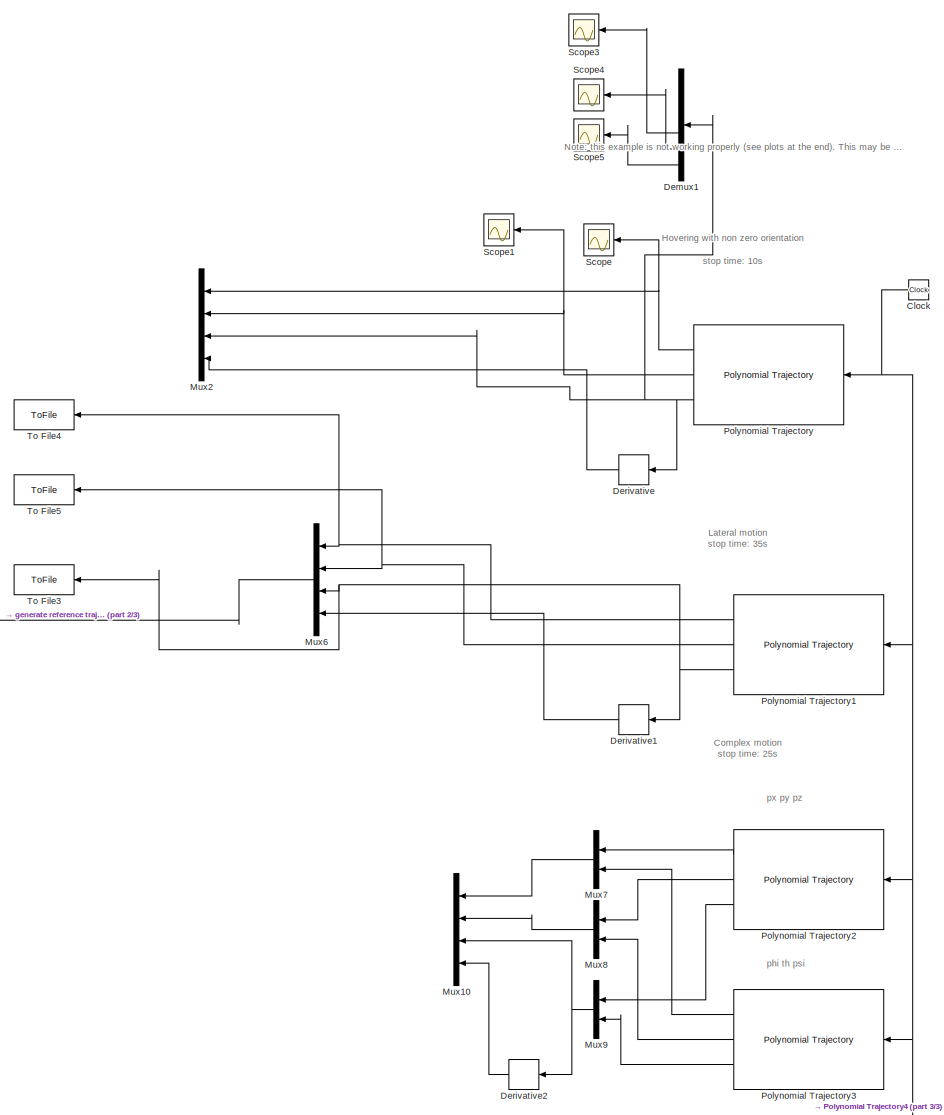
[diagram: root canvas - part 1/3, middle right region]
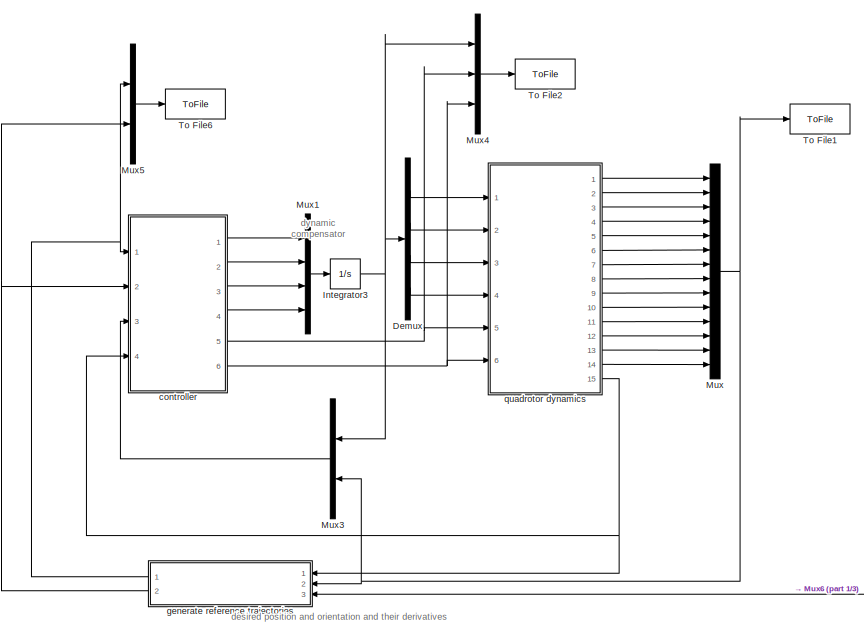
[diagram: root canvas - part 2/3, top left region]
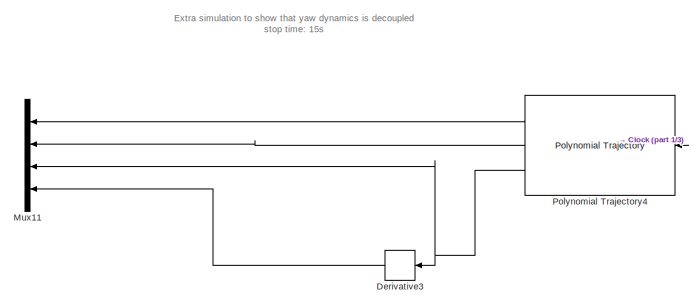
[diagram: root canvas - part 3/3, bottom right region]
MODEL slx_5abe82994318
KIND model
CONFIG AbsTol = auto
CONFIG EnableMultiTasking = off
CONFIG FixedStep = auto
CONFIG InitFcn = Kp1=30*eye(3); Kw1=Kp1;\nKp2=600*eye(3); Kw2=Kp2;\nKp3=900*eye(3); Kw3=Kp3;
CONFIG MaxStep = auto
CONFIG MinStep = auto
CONFIG RelTol = 1e-3
CONFIG SampleTimeConstraint = Unconstrained
CONFIG SolverName = VariableStepAuto
CONFIG StartTime = 0.0
CONFIG StopTime = 35
BLOCK [Clock] Clock
BLOCK [Demux] Demux
  Ports = [1, 4]
BLOCK [Demux] Demux1
  Outputs = 6
  Ports = [1, 6]
BLOCK [Derivative] Derivative
BLOCK [Derivative] Derivative1
BLOCK [Derivative] Derivative2
BLOCK [Derivative] Derivative3
BLOCK [Integrator] Integrator3
  InitialCondition = ones(4,1)*613125/4
  Ports = [1, 1]
BLOCK [Mux] Mux
  DisplayOption = bar
  Inputs = 14
  Ports = [14, 1]
BLOCK [Mux] Mux1
  DisplayOption = bar
  Ports = [4, 1]
BLOCK [Mux] Mux10
  DisplayOption = bar
  Ports = [4, 1]
BLOCK [Mux] Mux11
  DisplayOption = bar
  Ports = [4, 1]
BLOCK [Mux] Mux2
  DisplayOption = bar
  Ports = [4, 1]
BLOCK [Mux] Mux3
  DisplayOption = bar
  Inputs = 2
  Ports = [2, 1]
BLOCK [Mux] Mux4
  DisplayOption = bar
  Inputs = 3
  Ports = [3, 1]
BLOCK [Mux] Mux5
  DisplayOption = bar
  Inputs = 2
  Ports = [2, 1]
BLOCK [Mux] Mux6
  DisplayOption = bar
  Ports = [4, 1]
BLOCK [Mux] Mux7
  DisplayOption = bar
  Inputs = 2
  Ports = [2, 1]
BLOCK [Mux] Mux8
  DisplayOption = bar
  Inputs = 2
  Ports = [2, 1]
BLOCK [Mux] Mux9
  DisplayOption = bar
  Inputs = 2
  Ports = [2, 1]
BLOCK [Reference] Polynomial Trajectory  REF=robotcorelib/Polynomial Trajectory
  Ports = [1, 3]
  SourceBlock = robotcorelib/Polynomial Trajectory
  SourceProductBaseCode = NV,RO,RR,UV
  SourceType = robotics.slcore.internal.block.PolyTrajSys
BLOCK [Reference] Polynomial Trajectory1  REF=robotcorelib/Polynomial Trajectory
  Ports = [1, 3]
  SourceBlock = robotcorelib/Polynomial Trajectory
  SourceProductBaseCode = NV,RO,RR,UV
  SourceType = robotics.slcore.internal.block.PolyTrajSys
BLOCK [Reference] Polynomial Trajectory2  REF=robotcorelib/Polynomial Trajectory
  Ports = [1, 3]
  SourceBlock = robotcorelib/Polynomial Trajectory
  SourceProductBaseCode = NV,RO,RR,UV
  SourceType = robotics.slcore.internal.block.PolyTrajSys
BLOCK [Reference] Polynomial Trajectory3  REF=robotcorelib/Polynomial Trajectory
  Ports = [1, 3]
  SourceBlock = robotcorelib/Polynomial Trajectory
  SourceProductBaseCode = NV,RO,RR,UV
  SourceType = robotics.slcore.internal.block.PolyTrajSys
BLOCK [Reference] Polynomial Trajectory4  REF=robotcorelib/Polynomial Trajectory
  Ports = [1, 3]
  SourceBlock = robotcorelib/Polynomial Trajectory
  SourceProductBaseCode = NV,RO,RR,UV
  SourceType = robotics.slcore.internal.block.PolyTrajSys
BLOCK [Scope] Scope
  Floating = off
  NumInputPorts = 1
  Ports = [1]
  ScopeSpecificationString = Simulink.scopes.TimeScopeBlockCfg('CurrentConfiguration', extmgr.ConfigurationSet(extmgr.Configuration('Core','General UI',true),extmgr.Configuration('Core','Source UI',true),extmgr.Configuration('Sources','WiredSimulink',true,'DataLoggingVariableName','ScopeData1'),extmgr.Configuration('Visuals','Time Domain',true,'SerializedDisplays',{struct('MinYLimReal','-0.21812','MaxYLimReal','0.21812','YLab...<+1556ch>
BLOCK [Scope] Scope1
  Floating = off
  NumInputPorts = 1
  Ports = [1]
  ScopeSpecificationString = Simulink.scopes.TimeScopeBlockCfg('CurrentConfiguration', extmgr.ConfigurationSet(extmgr.Configuration('Core','General UI',true),extmgr.Configuration('Core','Source UI',true),extmgr.Configuration('Sources','WiredSimulink',true,'DataLoggingVariableName','ScopeData1'),extmgr.Configuration('Visuals','Time Domain',true,'SerializedDisplays',{struct('MinYLimReal','-0.81482','MaxYLimReal','0.81709','YLab...<+1558ch>
BLOCK [Scope] Scope3
  Floating = off
  NumInputPorts = 1
  Ports = [1]
  ScopeSpecificationString = Simulink.scopes.TimeScopeBlockCfg('CurrentConfiguration', extmgr.ConfigurationSet(extmgr.Configuration('Core','General UI',true),extmgr.Configuration('Core','Source UI',true),extmgr.Configuration('Sources','WiredSimulink',true,'DataLoggingVariableName','ScopeData2'),extmgr.Configuration('Visuals','Time Domain',true,'SerializedDisplays',{struct('MinYLimReal','-5.02362','MaxYLimReal','5.03225','YLab...<+1401ch>
BLOCK [Scope] Scope4
  Floating = off
  NumInputPorts = 1
  Ports = [1]
  ScopeSpecificationString = Simulink.scopes.TimeScopeBlockCfg('CurrentConfiguration', extmgr.ConfigurationSet(extmgr.Configuration('Core','General UI',true),extmgr.Configuration('Core','Source UI',true),extmgr.Configuration('Sources','WiredSimulink',true,'DataLoggingVariableName','ScopeData3'),extmgr.Configuration('Visuals','Time Domain',true,'SerializedDisplays',{struct('MinYLimReal','-5.03416','MaxYLimReal','5.01674','YLab...<+1399ch>
BLOCK [Scope] Scope5
  Floating = off
  NumInputPorts = 1
  Ports = [1]
  ScopeSpecificationString = Simulink.scopes.TimeScopeBlockCfg('CurrentConfiguration', extmgr.ConfigurationSet(extmgr.Configuration('Core','General UI',true),extmgr.Configuration('Core','Source UI',true),extmgr.Configuration('Sources','WiredSimulink',true,'DataLoggingVariableName','ScopeData4'),extmgr.Configuration('Visuals','Time Domain',true,'SerializedDisplays',{struct('MinYLimReal','-2.45852','MaxYLimReal','2.55192','YLab...<+1399ch>
BLOCK [ToFile] To File1
  Filename = state.mat
  MatrixName = state
  Ports = [1]
BLOCK [ToFile] To File2
  Filename = inputs.mat
  MatrixName = inputs
  Ports = [1]
BLOCK [ToFile] To File3
  Filename = ddq.mat
  MatrixName = ddq
  Ports = [1]
BLOCK [ToFile] To File4
  Filename = q.mat
  MatrixName = q
  Ports = [1]
BLOCK [ToFile] To File5
  Filename = dq.mat
  MatrixName = dq
  Ports = [1]
BLOCK [ToFile] To File6
  Filename = references.mat
  MatrixName = refs
  Ports = [1]
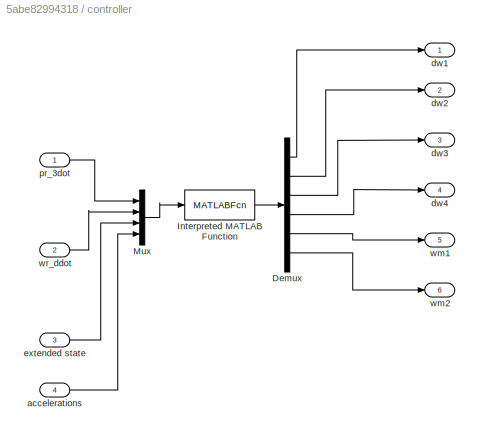
BLOCK [SubSystem] controller
  Ports = [4, 6]
  RequestExecContextInheritance = off
BLOCK [Demux] controller/Demux
  Outputs = 6
  Ports = [1, 6]
BLOCK [MATLABFcn] controller/Interpreted MATLAB Function
  MATLABFcn = quadrotor_controller(u(1:6),u(7:30))
  Output1D = off
  OutputDimensions = [6,1]
  OutputSignalType = real
  Ports = [1, 1]
BLOCK [Mux] controller/Mux
  DisplayOption = bar
  Ports = [4, 1]
BLOCK [Inport] controller/accelerations
  Port = 4
BLOCK [Outport] controller/dw1
BLOCK [Outport] controller/dw2
  Port = 2
BLOCK [Outport] controller/dw3
  Port = 3
BLOCK [Outport] controller/dw4
  Port = 4
BLOCK [Inport] controller/extended state
  Port = 3
BLOCK [Inport] controller/pr_3dot
BLOCK [Outport] controller/wm1
  Port = 5
BLOCK [Outport] controller/wm2
  Port = 6
BLOCK [Inport] controller/wr_ddot
  Port = 2
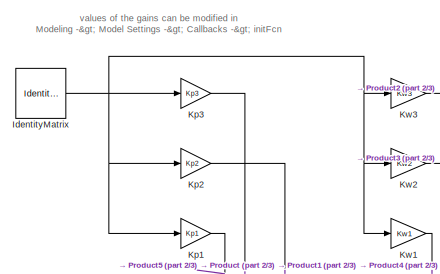
[diagram: generate reference trajectories - part 1/3, top left region]
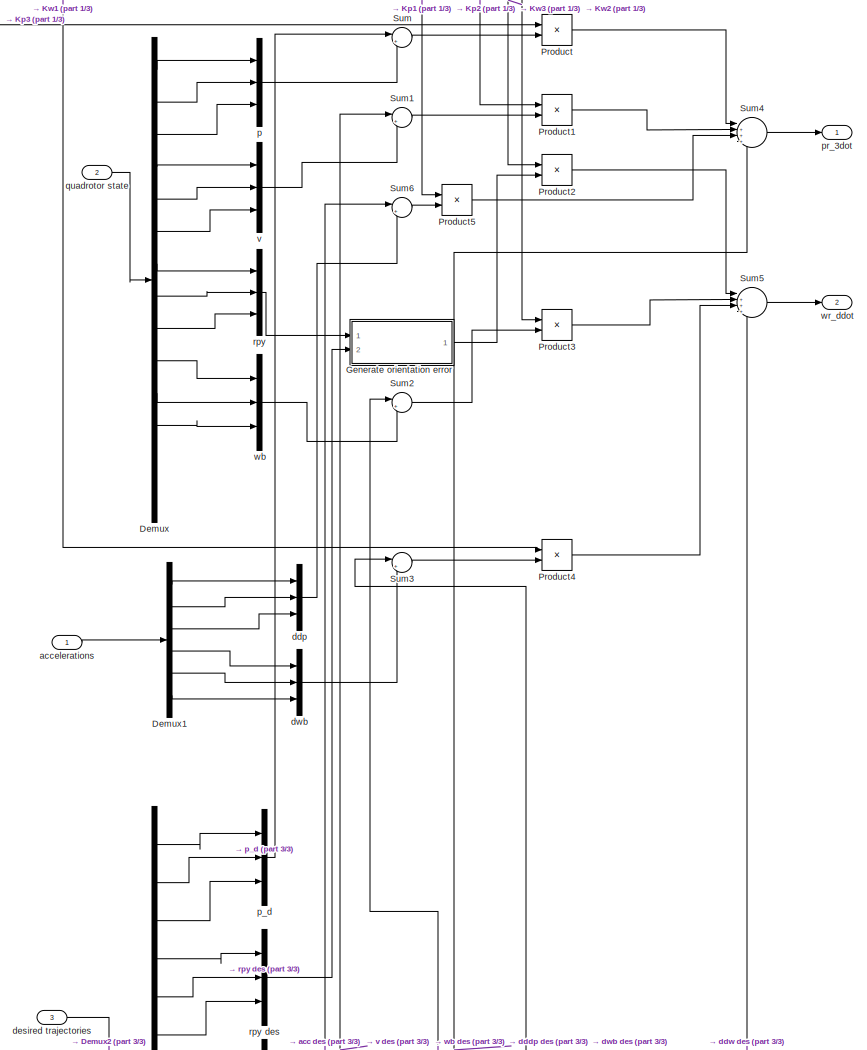
[diagram: generate reference trajectories - part 2/3, central region]
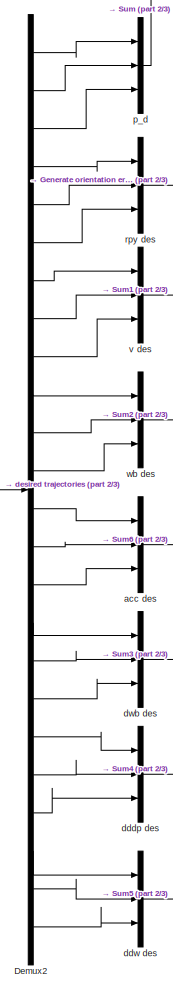
[diagram: generate reference trajectories - part 3/3, bottom center region]
BLOCK [SubSystem] generate reference trajectories
  Ports = [3, 2]
  RequestExecContextInheritance = off
BLOCK [Demux] generate reference trajectories/Demux
  Outputs = 14
  Ports = [1, 14]
BLOCK [Demux] generate reference trajectories/Demux1
  Outputs = 6
  Ports = [1, 6]
BLOCK [Demux] generate reference trajectories/Demux2
  Outputs = 24
  Ports = [1, 24]
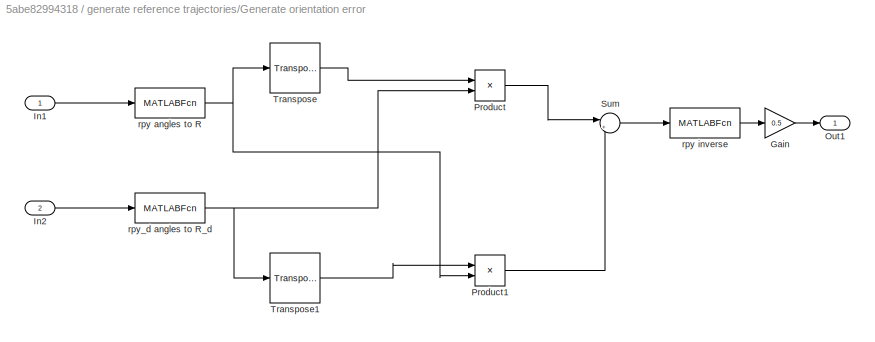
BLOCK [SubSystem] generate reference trajectories/Generate orientation error
  Ports = [2, 1]
  RequestExecContextInheritance = off
BLOCK [Gain] generate reference trajectories/Generate orientation error/Gain
  Gain = 0.5
BLOCK [Inport] generate reference trajectories/Generate orientation error/In1
BLOCK [Inport] generate reference trajectories/Generate orientation error/In2
  Port = 2
BLOCK [Outport] generate reference trajectories/Generate orientation error/Out1
BLOCK [Product] generate reference trajectories/Generate orientation error/Product
  Multiplication = Matrix(*)
  Ports = [2, 1]
BLOCK [Product] generate reference trajectories/Generate orientation error/Product1
  Multiplication = Matrix(*)
  Ports = [2, 1]
BLOCK [Sum] generate reference trajectories/Generate orientation error/Sum
  Inputs = |+-
  Ports = [2, 1]
BLOCK [Reference] generate reference trajectories/Generate orientation error/Transpose  REF=matrix_library/Transpose
  Ports = [1, 1]
  SourceBlock = matrix_library/Transpose
  SourceProductBaseCode = SL
  SourceType = Transpose
BLOCK [Reference] generate reference trajectories/Generate orientation error/Transpose1  REF=matrix_library/Transpose
  Ports = [1, 1]
  SourceBlock = matrix_library/Transpose
  SourceProductBaseCode = SL
  SourceType = Transpose
BLOCK [MATLABFcn] generate reference trajectories/Generate orientation error/rpy angles to R
  MATLABFcn = rpy_rotation('xyz',u)
  Output1D = off
  OutputDimensions = [3,3]
  Ports = [1, 1]
BLOCK [MATLABFcn] generate reference trajectories/Generate orientation error/rpy inverse
  MATLABFcn = iskew(u)
  Output1D = off
  OutputDimensions = [3,1]
  Ports = [1, 1]
BLOCK [MATLABFcn] generate reference trajectories/Generate orientation error/rpy_d angles to R_d
  MATLABFcn = rpy_rotation('xyz',u)
  Output1D = off
  OutputDimensions = [3,3]
  Ports = [1, 1]
BLOCK [IdentityMatrix] generate reference trajectories/IdentityMatrix
  OutputDimensions = 3
  Ports = [0, 1]
BLOCK [Gain] generate reference trajectories/Kp1
  Gain = Kp1
BLOCK [Gain] generate reference trajectories/Kp2
  Gain = Kp2
BLOCK [Gain] generate reference trajectories/Kp3
  Gain = Kp3
BLOCK [Gain] generate reference trajectories/Kw1
  Gain = Kw1
BLOCK [Gain] generate reference trajectories/Kw2
  Gain = Kw2
BLOCK [Gain] generate reference trajectories/Kw3
  Gain = Kw3
BLOCK [Product] generate reference trajectories/Product
  Multiplication = Matrix(*)
  Ports = [2, 1]
BLOCK [Product] generate reference trajectories/Product1
  Multiplication = Matrix(*)
  Ports = [2, 1]
BLOCK [Product] generate reference trajectories/Product2
  Multiplication = Matrix(*)
  Ports = [2, 1]
BLOCK [Product] generate reference trajectories/Product3
  Multiplication = Matrix(*)
  Ports = [2, 1]
BLOCK [Product] generate reference trajectories/Product4
  Multiplication = Matrix(*)
  Ports = [2, 1]
BLOCK [Product] generate reference trajectories/Product5
  Multiplication = Matrix(*)
  Ports = [2, 1]
BLOCK [Sum] generate reference trajectories/Sum
  Inputs = |+-
  Ports = [2, 1]
BLOCK [Sum] generate reference trajectories/Sum1
  Inputs = |+-
  Ports = [2, 1]
BLOCK [Sum] generate reference trajectories/Sum2
  Inputs = |+-
  Ports = [2, 1]
BLOCK [Sum] generate reference trajectories/Sum3
  Inputs = |+-
  Ports = [2, 1]
BLOCK [Sum] generate reference trajectories/Sum4
  Inputs = |++++
  Ports = [4, 1]
BLOCK [Sum] generate reference trajectories/Sum5
  Inputs = |++++
  Ports = [4, 1]
BLOCK [Sum] generate reference trajectories/Sum6
  Inputs = |+-
  Ports = [2, 1]
BLOCK [Mux] generate reference trajectories/acc des
  DisplayOption = bar
  Inputs = 3
  Ports = [3, 1]
BLOCK [Inport] generate reference trajectories/accelerations
BLOCK [Mux] generate reference trajectories/dddp des
  DisplayOption = bar
  Inputs = 3
  Ports = [3, 1]
BLOCK [Mux] generate reference trajectories/ddp
  DisplayOption = bar
  Inputs = 3
  Ports = [3, 1]
BLOCK [Mux] generate reference trajectories/ddw des
  DisplayOption = bar
  Inputs = 3
  Ports = [3, 1]
BLOCK [Inport] generate reference trajectories/desired trajectories
  Port = 3
BLOCK [Mux] generate reference trajectories/dwb
  DisplayOption = bar
  Inputs = 3
  Ports = [3, 1]
BLOCK [Mux] generate reference trajectories/dwb des
  DisplayOption = bar
  Inputs = 3
  Ports = [3, 1]
BLOCK [Mux] generate reference trajectories/p
  DisplayOption = bar
  Inputs = 3
  Ports = [3, 1]
BLOCK [Mux] generate reference trajectories/p_d
  DisplayOption = bar
  Inputs = 3
  Ports = [3, 1]
BLOCK [Outport] generate reference trajectories/pr_3dot
BLOCK [Inport] generate reference trajectories/quadrotor state
  Port = 2
BLOCK [Mux] generate reference trajectories/rpy
  DisplayOption = bar
  Inputs = 3
  Ports = [3, 1]
BLOCK [Mux] generate reference trajectories/rpy des
  DisplayOption = bar
  Inputs = 3
  Ports = [3, 1]
BLOCK [Mux] generate reference trajectories/v
  DisplayOption = bar
  Inputs = 3
  Ports = [3, 1]
BLOCK [Mux] generate reference trajectories/v des
  DisplayOption = bar
  Inputs = 3
  Ports = [3, 1]
BLOCK [Mux] generate reference trajectories/wb
  DisplayOption = bar
  Inputs = 3
  Ports = [3, 1]
BLOCK [Mux] generate reference trajectories/wb des
  DisplayOption = bar
  Inputs = 3
  Ports = [3, 1]
BLOCK [Outport] generate reference trajectories/wr_ddot
  Port = 2
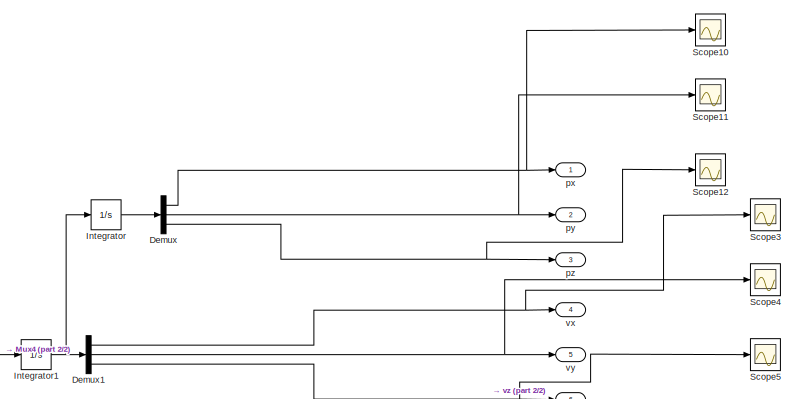
[diagram: quadrotor dynamics - part 1/2, top right region]
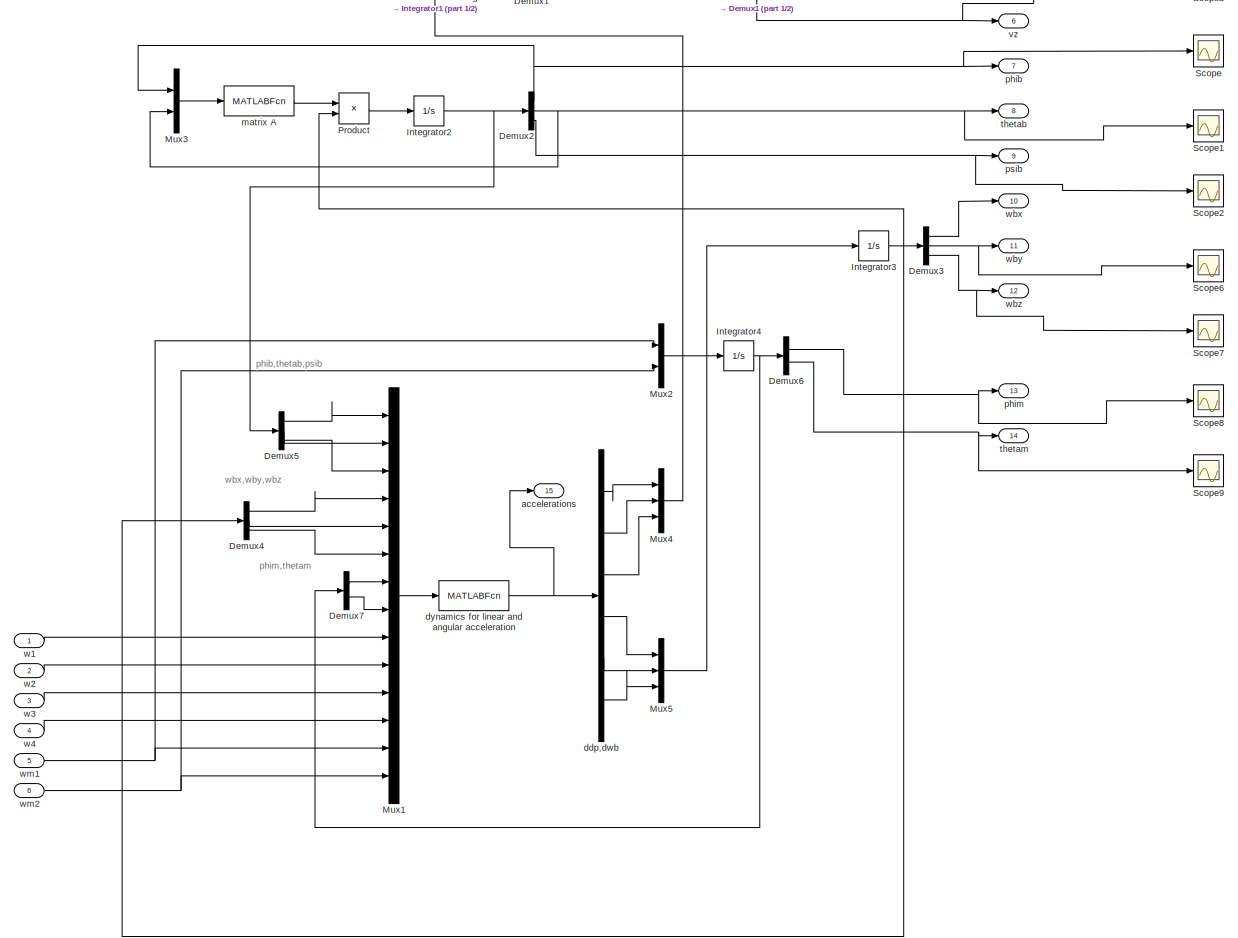
[diagram: quadrotor dynamics - part 2/2, full width, middle band]
BLOCK [SubSystem] quadrotor dynamics
  Ports = [6, 15]
  RequestExecContextInheritance = off
BLOCK [Demux] quadrotor dynamics/Demux
  Outputs = 3
  Ports = [1, 3]
BLOCK [Demux] quadrotor dynamics/Demux1
  Outputs = 3
  Ports = [1, 3]
BLOCK [Demux] quadrotor dynamics/Demux2
  Outputs = 3
  Ports = [1, 3]
BLOCK [Demux] quadrotor dynamics/Demux3
  Outputs = 3
  Ports = [1, 3]
BLOCK [Demux] quadrotor dynamics/Demux4
  Outputs = 3
  Ports = [1, 3]
BLOCK [Demux] quadrotor dynamics/Demux5
  Outputs = 3
  Ports = [1, 3]
BLOCK [Demux] quadrotor dynamics/Demux6
  Outputs = 2
  Ports = [1, 2]
BLOCK [Demux] quadrotor dynamics/Demux7
  Outputs = 2
  Ports = [1, 2]
BLOCK [Integrator] quadrotor dynamics/Integrator
  InitialCondition = [0 0 0]'
  Ports = [1, 1]
BLOCK [Integrator] quadrotor dynamics/Integrator1
  InitialCondition = [0 0 0]'
  Ports = [1, 1]
BLOCK [Integrator] quadrotor dynamics/Integrator2
  InitialCondition = [0 0 0]'
  Ports = [1, 1]
BLOCK [Integrator] quadrotor dynamics/Integrator3
  InitialCondition = [0 0 0]'
  Ports = [1, 1]
BLOCK [Integrator] quadrotor dynamics/Integrator4
  InitialCondition = [0 0]'
  Ports = [1, 1]
BLOCK [Mux] quadrotor dynamics/Mux1
  DisplayOption = bar
  Inputs = 14
  Ports = [14, 1]
BLOCK [Mux] quadrotor dynamics/Mux2
  DisplayOption = bar
  Inputs = 2
  Ports = [2, 1]
BLOCK [Mux] quadrotor dynamics/Mux3
  DisplayOption = bar
  Inputs = 2
  Ports = [2, 1]
BLOCK [Mux] quadrotor dynamics/Mux4
  DisplayOption = bar
  Inputs = 3
  Ports = [3, 1]
BLOCK [Mux] quadrotor dynamics/Mux5
  DisplayOption = bar
  Inputs = 3
  Ports = [3, 1]
BLOCK [Product] quadrotor dynamics/Product
  Multiplication = Matrix(*)
  Ports = [2, 1]
BLOCK [Scope] quadrotor dynamics/Scope
  Floating = off
  NumInputPorts = 1
  Ports = [1]
  ScopeSpecificationString = Simulink.scopes.TimeScopeBlockCfg('CurrentConfiguration', extmgr.ConfigurationSet(extmgr.Configuration('Core','General UI',true),extmgr.Configuration('Core','Source UI',true),extmgr.Configuration('Sources','WiredSimulink',true,'DataLoggingVariableName','ScopeData4'),extmgr.Configuration('Visuals','Time Domain',true,'SerializedDisplays',{struct('MinYLimReal','-0.05103','MaxYLimReal','0.20195','YLab...<+1403ch>
BLOCK [Scope] quadrotor dynamics/Scope1
  Floating = off
  NumInputPorts = 1
  Ports = [1]
  ScopeSpecificationString = Simulink.scopes.TimeScopeBlockCfg('CurrentConfiguration', extmgr.ConfigurationSet(extmgr.Configuration('Core','General UI',true),extmgr.Configuration('Core','Source UI',true),extmgr.Configuration('Sources','WiredSimulink',true,'DataLoggingVariableName','ScopeData5'),extmgr.Configuration('Visuals','Time Domain',true,'SerializedDisplays',{struct('MinYLimReal','-0.000000000000008','MaxYLimReal','0.00...<+1481ch>
BLOCK [Scope] quadrotor dynamics/Scope10
  Floating = off
  NumInputPorts = 1
  Ports = [1]
  ScopeSpecificationString = Simulink.scopes.TimeScopeBlockCfg('CurrentConfiguration', extmgr.ConfigurationSet(extmgr.Configuration('Core','General UI',true),extmgr.Configuration('Core','Source UI',true),extmgr.Configuration('Sources','WiredSimulink',true,'DataLoggingVariableName','ScopeData1'),extmgr.Configuration('Visuals','Time Domain',true,'SerializedDisplays',{struct('MinYLimReal','-0.000016','MaxYLimReal','0.000029','YL...<+1374ch>
BLOCK [Scope] quadrotor dynamics/Scope11
  Floating = off
  NumInputPorts = 1
  Ports = [1]
  ScopeSpecificationString = Simulink.scopes.TimeScopeBlockCfg('CurrentConfiguration', extmgr.ConfigurationSet(extmgr.Configuration('Core','General UI',true),extmgr.Configuration('Core','Source UI',true),extmgr.Configuration('Sources','WiredSimulink',true,'DataLoggingVariableName','ScopeData2'),extmgr.Configuration('Visuals','Time Domain',true,'SerializedDisplays',{struct('MinYLimReal','-0.00006','MaxYLimReal','0.00054','YLab...<+1366ch>
BLOCK [Scope] quadrotor dynamics/Scope12
  Floating = off
  NumInputPorts = 1
  Ports = [1]
  ScopeSpecificationString = Simulink.scopes.TimeScopeBlockCfg('CurrentConfiguration', extmgr.ConfigurationSet(extmgr.Configuration('Core','General UI',true),extmgr.Configuration('Core','Source UI',true),extmgr.Configuration('Sources','WiredSimulink',true,'DataLoggingVariableName','ScopeData3'),extmgr.Configuration('Visuals','Time Domain',true,'SerializedDisplays',{struct('MinYLimReal','-0.0000001','MaxYLimReal','0.00000004',...<+1386ch>
BLOCK [Scope] quadrotor dynamics/Scope2
  Floating = off
  NumInputPorts = 1
  Ports = [1]
  ScopeSpecificationString = Simulink.scopes.TimeScopeBlockCfg('CurrentConfiguration', extmgr.ConfigurationSet(extmgr.Configuration('Core','General UI',true),extmgr.Configuration('Core','Source UI',true),extmgr.Configuration('Sources','WiredSimulink',true,'DataLoggingVariableName','ScopeData6'),extmgr.Configuration('Visuals','Time Domain',true,'SerializedDisplays',{struct('MinYLimReal','-0.04934','MaxYLimReal','0.20053','YLab...<+1403ch>
BLOCK [Scope] quadrotor dynamics/Scope3
  Floating = off
  NumInputPorts = 1
  Ports = [1]
  ScopeSpecificationString = Simulink.scopes.TimeScopeBlockCfg('CurrentConfiguration', extmgr.ConfigurationSet(extmgr.Configuration('Core','General UI',true),extmgr.Configuration('Core','Source UI',true),extmgr.Configuration('Sources','WiredSimulink',true,'DataLoggingVariableName','ScopeData7'),extmgr.Configuration('Visuals','Time Domain',true,'SerializedDisplays',{struct('MinYLimReal','-1.00000','MaxYLimReal','1.00000','YLab...<+1367ch>
BLOCK [Scope] quadrotor dynamics/Scope4
  Floating = off
  NumInputPorts = 1
  Ports = [1]
  ScopeSpecificationString = Simulink.scopes.TimeScopeBlockCfg('CurrentConfiguration', extmgr.ConfigurationSet(extmgr.Configuration('Core','General UI',true),extmgr.Configuration('Core','Source UI',true),extmgr.Configuration('Sources','WiredSimulink',true,'DataLoggingVariableName','ScopeData8'),extmgr.Configuration('Visuals','Time Domain',true,'SerializedDisplays',{struct('MinYLimReal','-1.00000','MaxYLimReal','1.00000','YLab...<+1367ch>
BLOCK [Scope] quadrotor dynamics/Scope5
  Floating = off
  NumInputPorts = 1
  Ports = [1]
  ScopeSpecificationString = Simulink.scopes.TimeScopeBlockCfg('CurrentConfiguration', extmgr.ConfigurationSet(extmgr.Configuration('Core','General UI',true),extmgr.Configuration('Core','Source UI',true),extmgr.Configuration('Sources','WiredSimulink',true,'DataLoggingVariableName','ScopeData9'),extmgr.Configuration('Visuals','Time Domain',true,'SerializedDisplays',{struct('MinYLimReal','-0.00000000000002','MaxYLimReal','0.000...<+1443ch>
BLOCK [Scope] quadrotor dynamics/Scope6
  Floating = off
  NumInputPorts = 1
  Ports = [1]
  ScopeSpecificationString = Simulink.scopes.TimeScopeBlockCfg('CurrentConfiguration', extmgr.ConfigurationSet(extmgr.Configuration('Core','General UI',true),extmgr.Configuration('Core','Source UI',true),extmgr.Configuration('Sources','WiredSimulink',true,'DataLoggingVariableName','ScopeData10'),extmgr.Configuration('Visuals','Time Domain',true,'SerializedDisplays',{struct('MinYLimReal','-0.7956','MaxYLimReal','0.60685','YLab...<+1364ch>
BLOCK [Scope] quadrotor dynamics/Scope7
  Floating = off
  NumInputPorts = 1
  Ports = [1]
  ScopeSpecificationString = Simulink.scopes.TimeScopeBlockCfg('CurrentConfiguration', extmgr.ConfigurationSet(extmgr.Configuration('Core','General UI',true),extmgr.Configuration('Core','Source UI',true),extmgr.Configuration('Sources','WiredSimulink',true,'DataLoggingVariableName','ScopeData11'),extmgr.Configuration('Visuals','Time Domain',true,'SerializedDisplays',{struct('MinYLimReal','-0.57633','MaxYLimReal','0.51815','YLa...<+1368ch>
BLOCK [Scope] quadrotor dynamics/Scope8
  Floating = off
  NumInputPorts = 1
  Ports = [1]
  ScopeSpecificationString = Simulink.scopes.TimeScopeBlockCfg('CurrentConfiguration', extmgr.ConfigurationSet(extmgr.Configuration('Core','General UI',true),extmgr.Configuration('Core','Source UI',true),extmgr.Configuration('Sources','WiredSimulink',true,'DataLoggingVariableName','ScopeData1'),extmgr.Configuration('Visuals','Time Domain',true,'SerializedDisplays',{struct('MinYLimReal','-1.00000','MaxYLimReal','1.00000','YLab...<+1367ch>
BLOCK [Scope] quadrotor dynamics/Scope9
  Floating = off
  NumInputPorts = 1
  Ports = [1]
  ScopeSpecificationString = Simulink.scopes.TimeScopeBlockCfg('CurrentConfiguration', extmgr.ConfigurationSet(extmgr.Configuration('Core','General UI',true),extmgr.Configuration('Core','Source UI',true),extmgr.Configuration('Sources','WiredSimulink',true,'DataLoggingVariableName','ScopeData2'),extmgr.Configuration('Visuals','Time Domain',true,'SerializedDisplays',{struct('MinYLimReal','-1.00000','MaxYLimReal','1.00000','YLab...<+1367ch>
BLOCK [Outport] quadrotor dynamics/accelerations
  Port = 15
BLOCK [Demux] quadrotor dynamics/ddp,dwb
  Outputs = 6
  Ports = [1, 6]
BLOCK [MATLABFcn] quadrotor dynamics/dynamics for linear and angular acceleration
  MATLABFcn = quadrotor_dynamics(u(1),u(2),u(3),u(4),u(5),u(6),u(7),u(8),u(9),u(10),u(11),u(12),u(13),u(14))
  Output1D = off
  OutputDimensions = [6,1]
  Ports = [1, 1]
BLOCK [MATLABFcn] quadrotor dynamics/matrix A
  MATLABFcn = matrix_A(u)
  Output1D = off
  OutputDimensions = [3,3]
  Ports = [1, 1]
BLOCK [Outport] quadrotor dynamics/phib
  Port = 7
BLOCK [Outport] quadrotor dynamics/phim
  Port = 13
BLOCK [Outport] quadrotor dynamics/psib
  Port = 9
BLOCK [Outport] quadrotor dynamics/px
  IconDisplay = Signal name
BLOCK [Outport] quadrotor dynamics/py
  Port = 2
BLOCK [Outport] quadrotor dynamics/pz
  IconDisplay = Signal name
  Port = 3
BLOCK [Outport] quadrotor dynamics/thetab
  Port = 8
BLOCK [Outport] quadrotor dynamics/thetam
  Port = 14
BLOCK [Outport] quadrotor dynamics/vx
  Port = 4
BLOCK [Outport] quadrotor dynamics/vy
  Port = 5
BLOCK [Outport] quadrotor dynamics/vz
  Port = 6
BLOCK [Inport] quadrotor dynamics/w1
BLOCK [Inport] quadrotor dynamics/w2
  Port = 2
BLOCK [Inport] quadrotor dynamics/w3
  Port = 3
BLOCK [Inport] quadrotor dynamics/w4
  Port = 4
BLOCK [Outport] quadrotor dynamics/wbx
  Port = 10
BLOCK [Outport] quadrotor dynamics/wby
  Port = 11
BLOCK [Outport] quadrotor dynamics/wbz
  Port = 12
BLOCK [Inport] quadrotor dynamics/wm1
  Port = 5
BLOCK [Inport] quadrotor dynamics/wm2
  Port = 6
ANNOTATION (root): Note: this example is not working properly (see plots at the end). This may be due to the fact that the desired angular velocity is being computed simply as the derivative of the desired orientation. However, as also done in the dynamics, the derivative of the RPY angles and the desired angular velocity are related by a matrix, so this should be taken into account here
ANNOTATION (root): Complex motion stop time: 25s
ANNOTATION (root): Extra simulation to show that yaw dynamics is decoupled stop time: 15s
ANNOTATION (root): Hovering with non zero orientation stop time: 10s
ANNOTATION (root): Lateral motion stop time: 35s
ANNOTATION (root): desired position and orientation and their derivatives
ANNOTATION (root): dynamic compensator
ANNOTATION (root): phi th psi
ANNOTATION (root): px py pz
ANNOTATION generate reference trajectories: values of the gains can be modified in Modeling -> Model Settings -> Callbacks -> initFcn
ANNOTATION quadrotor dynamics: phib,thetab,psib
ANNOTATION quadrotor dynamics: phim,thetam
ANNOTATION quadrotor dynamics: wbx,wby,wbz
NET Clock:1 -> Polynomial Trajectory1:1, Polynomial Trajectory2:1, Polynomial Trajectory3:1, Polynomial Trajectory4:1, Polynomial Trajectory:1
LINE Demux1:4 -> Scope3:1
LINE Demux1:5 -> Scope4:1
LINE Demux1:6 -> Scope5:1
LINE Demux:1 -> quadrotor dynamics:1
LINE Demux:2 -> quadrotor dynamics:2
LINE Demux:3 -> quadrotor dynamics:3
LINE Demux:4 -> quadrotor dynamics:4
LINE Derivative1:1 -> Mux6:4
LINE Derivative2:1 -> Mux10:4
LINE Derivative3:1 -> Mux11:4
LINE Derivative:1 -> Mux2:4
NET Integrator3:1 -> Demux:1, Mux3:1, Mux4:1
LINE Mux1:1 -> Integrator3:1
LINE Mux3:1 -> controller:3
LINE Mux4:1 -> To File2:1
LINE Mux5:1 -> To File6:1
LINE Mux6:1 -> generate reference trajectories:3
LINE Mux7:1 -> Mux10:1
LINE Mux8:1 -> Mux10:2
NET Mux9:1 -> Derivative2:1, Mux10:3
NET Mux:1 -> Mux3:2, To File1:1, generate reference trajectories:2
NET Polynomial Trajectory1:1 -> Mux6:1, To File4:1
NET Polynomial Trajectory1:2 -> Mux6:2, To File5:1
NET Polynomial Trajectory1:3 -> Derivative1:1, Mux6:3, To File3:1
LINE Polynomial Trajectory2:1 -> Mux7:1
LINE Polynomial Trajectory2:2 -> Mux8:1
LINE Polynomial Trajectory2:3 -> Mux9:1
LINE Polynomial Trajectory3:1 -> Mux7:2
LINE Polynomial Trajectory3:2 -> Mux8:2
LINE Polynomial Trajectory3:3 -> Mux9:2
LINE Polynomial Trajectory4:1 -> Mux11:1
LINE Polynomial Trajectory4:2 -> Mux11:2
NET Polynomial Trajectory4:3 -> Derivative3:1, Mux11:3
NET Polynomial Trajectory:1 -> Mux2:1, Scope:1
NET Polynomial Trajectory:2 -> Mux2:2, Scope1:1
NET Polynomial Trajectory:3 -> Demux1:1, Derivative:1, Mux2:3
LINE controller/Demux:1 -> controller/dw1:1
LINE controller/Demux:2 -> controller/dw2:1
LINE controller/Demux:3 -> controller/dw3:1
LINE controller/Demux:4 -> controller/dw4:1
LINE controller/Demux:5 -> controller/wm1:1
LINE controller/Demux:6 -> controller/wm2:1
LINE controller/Interpreted MATLAB Function:1 -> controller/Demux:1
LINE controller/Mux:1 -> controller/Interpreted MATLAB Function:1
LINE controller/accelerations:1 -> controller/Mux:4
LINE controller/extended state:1 -> controller/Mux:3
LINE controller/pr_3dot:1 -> controller/Mux:1
LINE controller/wr_ddot:1 -> controller/Mux:2
LINE controller:1 -> Mux1:1
LINE controller:2 -> Mux1:2
LINE controller:3 -> Mux1:3
LINE controller:4 -> Mux1:4
NET controller:5 -> Mux4:2, quadrotor dynamics:5
NET controller:6 -> Mux4:3, quadrotor dynamics:6
LINE generate reference trajectories/Demux1:1 -> generate reference trajectories/ddp:1
LINE generate reference trajectories/Demux1:2 -> generate reference trajectories/ddp:2
LINE generate reference trajectories/Demux1:3 -> generate reference trajectories/ddp:3
LINE generate reference trajectories/Demux1:4 -> generate reference trajectories/dwb:1
LINE generate reference trajectories/Demux1:5 -> generate reference trajectories/dwb:2
LINE generate reference trajectories/Demux1:6 -> generate reference trajectories/dwb:3
LINE generate reference trajectories/Demux2:1 -> generate reference trajectories/p_d:1
LINE generate reference trajectories/Demux2:10 -> generate reference trajectories/wb des:1
LINE generate reference trajectories/Demux2:11 -> generate reference trajectories/wb des:2
LINE generate reference trajectories/Demux2:12 -> generate reference trajectories/wb des:3
LINE generate reference trajectories/Demux2:13 -> generate reference trajectories/acc des:1
LINE generate reference trajectories/Demux2:14 -> generate reference trajectories/acc des:2
LINE generate reference trajectories/Demux2:15 -> generate reference trajectories/acc des:3
LINE generate reference trajectories/Demux2:16 -> generate reference trajectories/dwb des:1
LINE generate reference trajectories/Demux2:17 -> generate reference trajectories/dwb des:2
LINE generate reference trajectories/Demux2:18 -> generate reference trajectories/dwb des:3
LINE generate reference trajectories/Demux2:19 -> generate reference trajectories/dddp des:1
LINE generate reference trajectories/Demux2:2 -> generate reference trajectories/p_d:2
LINE generate reference trajectories/Demux2:20 -> generate reference trajectories/dddp des:2
LINE generate reference trajectories/Demux2:21 -> generate reference trajectories/dddp des:3
LINE generate reference trajectories/Demux2:22 -> generate reference trajectories/ddw des:1
LINE generate reference trajectories/Demux2:23 -> generate reference trajectories/ddw des:2
LINE generate reference trajectories/Demux2:24 -> generate reference trajectories/ddw des:3
LINE generate reference trajectories/Demux2:3 -> generate reference trajectories/p_d:3
LINE generate reference trajectories/Demux2:4 -> generate reference trajectories/rpy des:1
LINE generate reference trajectories/Demux2:5 -> generate reference trajectories/rpy des:2
LINE generate reference trajectories/Demux2:6 -> generate reference trajectories/rpy des:3
LINE generate reference trajectories/Demux2:7 -> generate reference trajectories/v des:1
LINE generate reference trajectories/Demux2:8 -> generate reference trajectories/v des:2
LINE generate reference trajectories/Demux2:9 -> generate reference trajectories/v des:3
LINE generate reference trajectories/Demux:1 -> generate reference trajectories/p:1
LINE generate reference trajectories/Demux:10 -> generate reference trajectories/wb:1
LINE generate reference trajectories/Demux:11 -> generate reference trajectories/wb:2
LINE generate reference trajectories/Demux:12 -> generate reference trajectories/wb:3
LINE generate reference trajectories/Demux:2 -> generate reference trajectories/p:2
LINE generate reference trajectories/Demux:3 -> generate reference trajectories/p:3
LINE generate reference trajectories/Demux:4 -> generate reference trajectories/v:1
LINE generate reference trajectories/Demux:5 -> generate reference trajectories/v:2
LINE generate reference trajectories/Demux:6 -> generate reference trajectories/v:3
LINE generate reference trajectories/Demux:7 -> generate reference trajectories/rpy:1
LINE generate reference trajectories/Demux:8 -> generate reference trajectories/rpy:2
LINE generate reference trajectories/Demux:9 -> generate reference trajectories/rpy:3
LINE generate reference trajectories/Generate orientation error/Gain:1 -> generate reference trajectories/Generate orientation error/Out1:1
LINE generate reference trajectories/Generate orientation error/In1:1 -> generate reference trajectories/Generate orientation error/rpy angles to R:1
LINE generate reference trajectories/Generate orientation error/In2:1 -> generate reference trajectories/Generate orientation error/rpy_d angles to R_d:1
LINE generate reference trajectories/Generate orientation error/Product1:1 -> generate reference trajectories/Generate orientation error/Sum:2
LINE generate reference trajectories/Generate orientation error/Product:1 -> generate reference trajectories/Generate orientation error/Sum:1
LINE generate reference trajectories/Generate orientation error/Sum:1 -> generate reference trajectories/Generate orientation error/rpy inverse:1
LINE generate reference trajectories/Generate orientation error/Transpose1:1 -> generate reference trajectories/Generate orientation error/Product1:1
LINE generate reference trajectories/Generate orientation error/Transpose:1 -> generate reference trajectories/Generate orientation error/Product:1
NET generate reference trajectories/Generate orientation error/rpy angles to R:1 -> generate reference trajectories/Generate orientation error/Product1:2, generate reference trajectories/Generate orientation error/Transpose:1
LINE generate reference trajectories/Generate orientation error/rpy inverse:1 -> generate reference trajectories/Generate orientation error/Gain:1
NET generate reference trajectories/Generate orientation error/rpy_d angles to R_d:1 -> generate reference trajectories/Generate orientation error/Product:2, generate reference trajectories/Generate orientation error/Transpose1:1
LINE generate reference trajectories/Generate orientation error:1 -> generate reference trajectories/Product2:2
NET generate reference trajectories/IdentityMatrix:1 -> generate reference trajectories/Kp1:1, generate reference trajectories/Kp2:1, generate reference trajectories/Kp3:1, generate reference trajectories/Kw1:1, generate reference trajectories/Kw2:1, generate reference trajectories/Kw3:1
LINE generate reference trajectories/Kp1:1 -> generate reference trajectories/Product5:1
LINE generate reference trajectories/Kp2:1 -> generate reference trajectories/Product1:1
LINE generate reference trajectories/Kp3:1 -> generate reference trajectories/Product:1
LINE generate reference trajectories/Kw1:1 -> generate reference trajectories/Product4:1
LINE generate reference trajectories/Kw2:1 -> generate reference trajectories/Product3:1
LINE generate reference trajectories/Kw3:1 -> generate reference trajectories/Product2:1
LINE generate reference trajectories/Product1:1 -> generate reference trajectories/Sum4:2
LINE generate reference trajectories/Product2:1 -> generate reference trajectories/Sum5:1
LINE generate reference trajectories/Product3:1 -> generate reference trajectories/Sum5:2
LINE generate reference trajectories/Product4:1 -> generate reference trajectories/Sum5:3
LINE generate reference trajectories/Product5:1 -> generate reference trajectories/Sum4:3
LINE generate reference trajectories/Product:1 -> generate reference trajectories/Sum4:1
LINE generate reference trajectories/Sum1:1 -> generate reference trajectories/Product1:2
LINE generate reference trajectories/Sum2:1 -> generate reference trajectories/Product3:2
LINE generate reference trajectories/Sum3:1 -> generate reference trajectories/Product4:2
LINE generate reference trajectories/Sum4:1 -> generate reference trajectories/pr_3dot:1
LINE generate reference trajectories/Sum5:1 -> generate reference trajectories/wr_ddot:1
LINE generate reference trajectories/Sum6:1 -> generate reference trajectories/Product5:2
LINE generate reference trajectories/Sum:1 -> generate reference trajectories/Product:2
LINE generate reference trajectories/acc des:1 -> generate reference trajectories/Sum6:1
LINE generate reference trajectories/accelerations:1 -> generate reference trajectories/Demux1:1
LINE generate reference trajectories/dddp des:1 -> generate reference trajectories/Sum4:4
LINE generate reference trajectories/ddp:1 -> generate reference trajectories/Sum6:2
LINE generate reference trajectories/ddw des:1 -> generate reference trajectories/Sum5:4
LINE generate reference trajectories/desired trajectories:1 -> generate reference trajectories/Demux2:1
LINE generate reference trajectories/dwb des:1 -> generate reference trajectories/Sum3:1
LINE generate reference trajectories/dwb:1 -> generate reference trajectories/Sum3:2
LINE generate reference trajectories/p:1 -> generate reference trajectories/Sum:2
LINE generate reference trajectories/p_d:1 -> generate reference trajectories/Sum:1
LINE generate reference trajectories/quadrotor state:1 -> generate reference trajectories/Demux:1
LINE generate reference trajectories/rpy des:1 -> generate reference trajectories/Generate orientation error:2
LINE generate reference trajectories/rpy:1 -> generate reference trajectories/Generate orientation error:1
LINE generate reference trajectories/v des:1 -> generate reference trajectories/Sum1:1
LINE generate reference trajectories/v:1 -> generate reference trajectories/Sum1:2
LINE generate reference trajectories/wb des:1 -> generate reference trajectories/Sum2:1
LINE generate reference trajectories/wb:1 -> generate reference trajectories/Sum2:2
NET generate reference trajectories:1 -> Mux5:1, controller:1
NET generate reference trajectories:2 -> Mux5:2, controller:2
NET quadrotor dynamics/Demux1:1 -> quadrotor dynamics/Scope3:1, quadrotor dynamics/vx:1
NET quadrotor dynamics/Demux1:2 -> quadrotor dynamics/Scope4:1, quadrotor dynamics/vy:1
NET quadrotor dynamics/Demux1:3 -> quadrotor dynamics/Scope5:1, quadrotor dynamics/vz:1
NET quadrotor dynamics/Demux2:1 -> quadrotor dynamics/Mux3:1, quadrotor dynamics/Scope:1, quadrotor dynamics/phib:1
NET quadrotor dynamics/Demux2:2 -> quadrotor dynamics/Mux3:2, quadrotor dynamics/Scope1:1, quadrotor dynamics/thetab:1
NET quadrotor dynamics/Demux2:3 -> quadrotor dynamics/Scope2:1, quadrotor dynamics/psib:1
LINE quadrotor dynamics/Demux3:1 -> quadrotor dynamics/wbx:1
NET quadrotor dynamics/Demux3:2 -> quadrotor dynamics/Scope6:1, quadrotor dynamics/wby:1
NET quadrotor dynamics/Demux3:3 -> quadrotor dynamics/Scope7:1, quadrotor dynamics/wbz:1
LINE quadrotor dynamics/Demux4:1 -> quadrotor dynamics/Mux1:4
LINE quadrotor dynamics/Demux4:2 -> quadrotor dynamics/Mux1:5
LINE quadrotor dynamics/Demux4:3 -> quadrotor dynamics/Mux1:6
LINE quadrotor dynamics/Demux5:1 -> quadrotor dynamics/Mux1:1
LINE quadrotor dynamics/Demux5:2 -> quadrotor dynamics/Mux1:2
LINE quadrotor dynamics/Demux5:3 -> quadrotor dynamics/Mux1:3
NET quadrotor dynamics/Demux6:1 -> quadrotor dynamics/Scope8:1, quadrotor dynamics/phim:1
NET quadrotor dynamics/Demux6:2 -> quadrotor dynamics/Scope9:1, quadrotor dynamics/thetam:1
LINE quadrotor dynamics/Demux7:1 -> quadrotor dynamics/Mux1:7
LINE quadrotor dynamics/Demux7:2 -> quadrotor dynamics/Mux1:8
NET quadrotor dynamics/Demux:1 -> quadrotor dynamics/Scope10:1, quadrotor dynamics/px:1
NET quadrotor dynamics/Demux:2 -> quadrotor dynamics/Scope11:1, quadrotor dynamics/py:1
NET quadrotor dynamics/Demux:3 -> quadrotor dynamics/Scope12:1, quadrotor dynamics/pz:1
NET quadrotor dynamics/Integrator1:1 -> quadrotor dynamics/Demux1:1, quadrotor dynamics/Integrator:1
NET quadrotor dynamics/Integrator2:1 -> quadrotor dynamics/Demux2:1, quadrotor dynamics/Demux5:1
NET quadrotor dynamics/Integrator3:1 -> quadrotor dynamics/Demux3:1, quadrotor dynamics/Demux4:1, quadrotor dynamics/Product:2
NET quadrotor dynamics/Integrator4:1 -> quadrotor dynamics/Demux6:1, quadrotor dynamics/Demux7:1
LINE quadrotor dynamics/Integrator:1 -> quadrotor dynamics/Demux:1
LINE quadrotor dynamics/Mux1:1 -> quadrotor dynamics/dynamics for linear and angular acceleration:1
LINE quadrotor dynamics/Mux2:1 -> quadrotor dynamics/Integrator4:1
LINE quadrotor dynamics/Mux3:1 -> quadrotor dynamics/matrix A:1
LINE quadrotor dynamics/Mux4:1 -> quadrotor dynamics/Integrator1:1
LINE quadrotor dynamics/Mux5:1 -> quadrotor dynamics/Integrator3:1
LINE quadrotor dynamics/Product:1 -> quadrotor dynamics/Integrator2:1
LINE quadrotor dynamics/ddp,dwb:1 -> quadrotor dynamics/Mux4:1
LINE quadrotor dynamics/ddp,dwb:2 -> quadrotor dynamics/Mux4:2
LINE quadrotor dynamics/ddp,dwb:3 -> quadrotor dynamics/Mux4:3
LINE quadrotor dynamics/ddp,dwb:4 -> quadrotor dynamics/Mux5:1
LINE quadrotor dynamics/ddp,dwb:5 -> quadrotor dynamics/Mux5:2
LINE quadrotor dynamics/ddp,dwb:6 -> quadrotor dynamics/Mux5:3
NET quadrotor dynamics/dynamics for linear and angular acceleration:1 -> quadrotor dynamics/accelerations:1, quadrotor dynamics/ddp,dwb:1
LINE quadrotor dynamics/matrix A:1 -> quadrotor dynamics/Product:1
LINE quadrotor dynamics/w1:1 -> quadrotor dynamics/Mux1:9
LINE quadrotor dynamics/w2:1 -> quadrotor dynamics/Mux1:10
LINE quadrotor dynamics/w3:1 -> quadrotor dynamics/Mux1:11
LINE quadrotor dynamics/w4:1 -> quadrotor dynamics/Mux1:12
NET quadrotor dynamics/wm1:1 -> quadrotor dynamics/Mux1:13, quadrotor dynamics/Mux2:1
NET quadrotor dynamics/wm2:1 -> quadrotor dynamics/Mux1:14, quadrotor dynamics/Mux2:2
LINE quadrotor dynamics:1 -> Mux:1
LINE quadrotor dynamics:10 -> Mux:10
LINE quadrotor dynamics:11 -> Mux:11
LINE quadrotor dynamics:12 -> Mux:12
LINE quadrotor dynamics:13 -> Mux:13
LINE quadrotor dynamics:14 -> Mux:14
NET quadrotor dynamics:15 -> controller:4, generate reference trajectories:1
LINE quadrotor dynamics:2 -> Mux:2
LINE quadrotor dynamics:3 -> Mux:3
LINE quadrotor dynamics:4 -> Mux:4
LINE quadrotor dynamics:5 -> Mux:5
LINE quadrotor dynamics:6 -> Mux:6
LINE quadrotor dynamics:7 -> Mux:7
LINE quadrotor dynamics:8 -> Mux:8
LINE quadrotor dynamics:9 -> Mux:9
note: NET lines group one-source signal fan-out (src -> all destinations, sorted); 1:1 wires keep LINE
